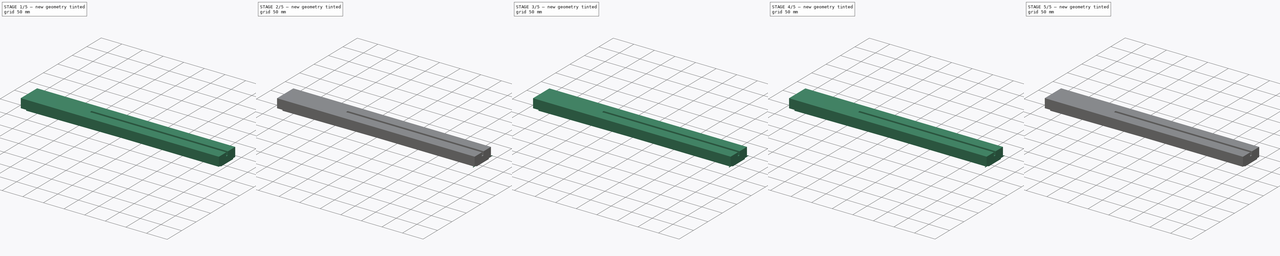
[diagram: build sequence overview — one tinted view per stage of 5, left to right]
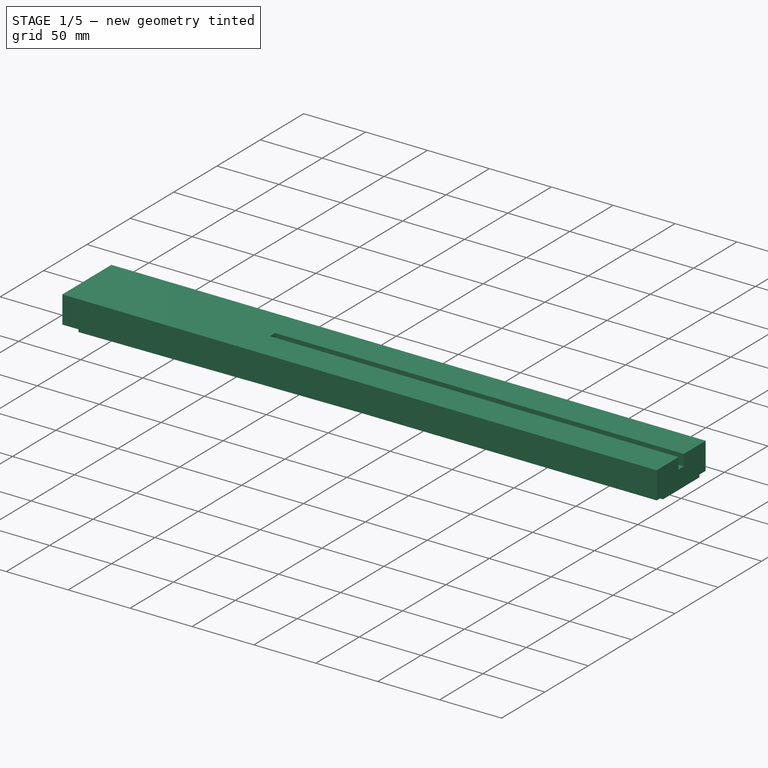
[diagram: stage 1 of 5 — iso view after this stage's code; geometry added in this stage tinted green]
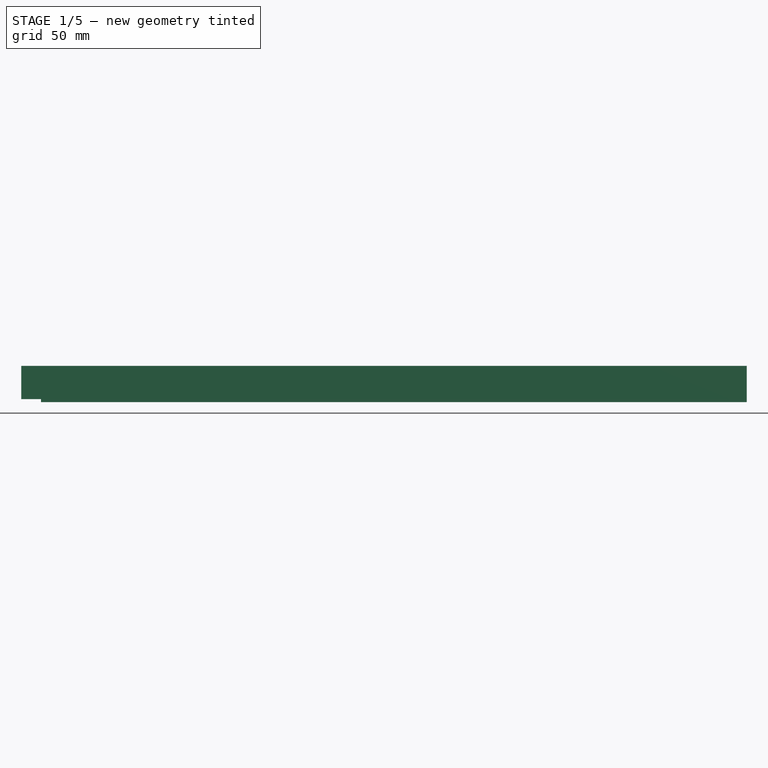
[diagram: stage 1 of 5 — front view after this stage's code; geometry added in this stage tinted green]
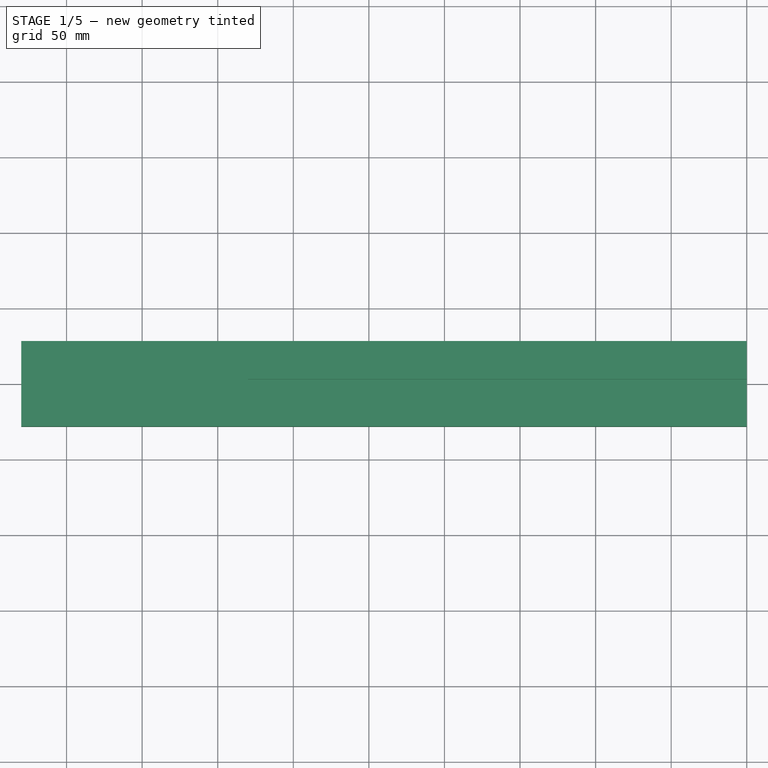
[diagram: stage 1 of 5 — top view after this stage's code; geometry added in this stage tinted green]
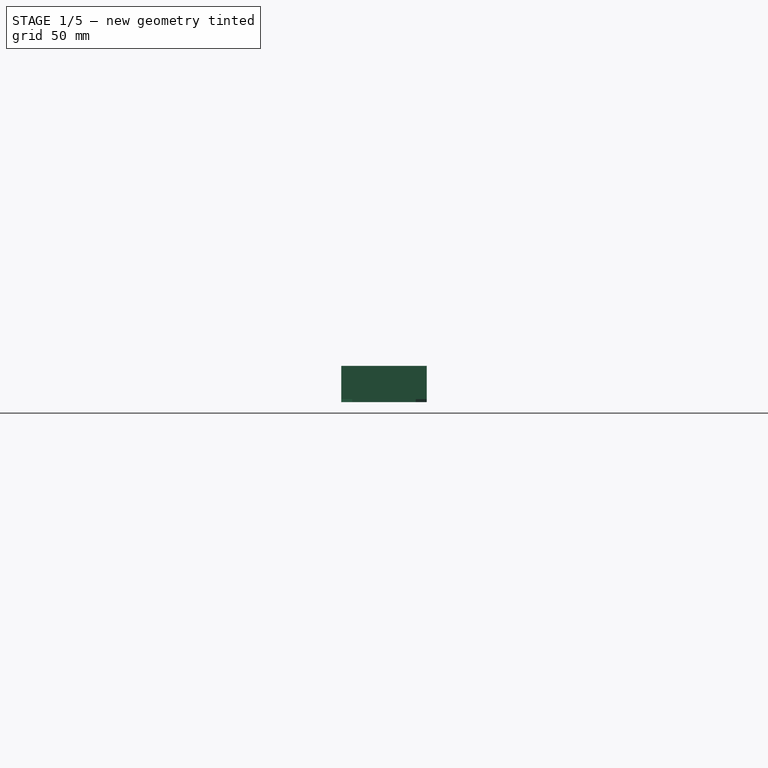
[diagram: stage 1 of 5 — right view after this stage's code; geometry added in this stage tinted green]
FCSTD DOCUMENT  (FreeCAD 0.21R33771 (Git))
Label: nocaster
License: All rights reserved
LicenseURL: http://en.wikipedia.org/wiki/All_rights_reserved
objects: Part::Feature×27, PartDesign::Body×23, PartDesign::FeatureBase×22, Part::RuledSurface×19, Sketcher::SketchObject×12, Part::Compound×6, Part::Extrusion×2, Part::Part2DObjectPython×2, PartDesign::Pocket×2, Part::Cut×1, PartDesign::Pad×1, Part::MultiFuse×1
note: 121 computed .brp shape members not serialized (recipe doc carries the construction recipe); baked Part::Feature solids carry a one-line shape summary decoded from their .brp

FEATURE [Sketcher::SketchObject] Sketch008
  FullyConstrained = true
  MapMode = 5
  Support = -> [XY_Plane021]
  sketch-geometry (4):
    g0: LineSegment StartX=1.55e-14 StartY=20.9775 StartZ=0 EndX=1.55e-14 EndY=-20.9775 EndZ=0
    g1: LineSegment StartX=-466.9 StartY=28.265 StartZ=0 EndX=-466.9 EndY=-28.265 EndZ=0
    g2: LineSegment StartX=-466.9 StartY=28.265 StartZ=0 EndX=1.55e-14 EndY=20.9775 EndZ=0
    g3: LineSegment StartX=-466.9 StartY=-28.265 StartZ=0 EndX=1.55e-14 EndY=-20.9775 EndZ=0
  constraints (10):
    c: Vertical(g0)
    c: DistanceY(g0,g0) = 41.955
    c: Symmetric(g0,g0,g-1)
    c: DistanceY(g1,g1) = 56.53
    c: Symmetric(g1,g1,g-1)
    c: Distance(g-1,g1) = 466.9
    c: Coincident(g2,g1)
    c: Coincident(g2,g0)
    c: Coincident(g3,g1)
    c: Coincident(g3,g0)
FEATURE [PartDesign::Pad] Pad
  Direction = (0,0,1)
  Length = 2
  Length2 = 10
  Profile = -> Sketch008
  ReferenceAxis = -> Sketch008 [N_Axis]
  Type = 0
FEATURE [Sketcher::SketchObject] Sketch009
  ExternalGeometry = -> [Pad]
  FullyConstrained = true
  MapMode = 5
  Placement = pos=(0,0,2) rot=(0,0,1;0rad)
  Support = -> [Pad]
  sketch-geometry (4):
    g0: LineSegment StartX=-2 StartY=19.0085 StartZ=0 EndX=-2 EndY=-19.0085 EndZ=0
    g1: LineSegment StartX=-464.9 StartY=26.2335 StartZ=0 EndX=-464.9 EndY=-26.2335 EndZ=0
    g2: LineSegment StartX=-464.9 StartY=26.2335 StartZ=0 EndX=-2 EndY=19.0085 EndZ=0
    g3: LineSegment StartX=-464.9 StartY=-26.2335 StartZ=0 EndX=-2 EndY=-19.0085 EndZ=0
  constraints (12):
    c: Vertical(g0)
    c: Distance(g-1,g0) = 2
    c: Distance(g0,g-3) = 2
    c: Distance(g0,g-4) = 2
    c: Vertical(g1)
    c: Coincident(g2,g1)
    c: Coincident(g2,g0)
    c: Coincident(g3,g1)
    c: Coincident(g3,g0)
    c: Distance(g1,g-3) = 2
    c: Distance(g1,g-4) = 2
    c: Distance(g-1,g1) = 464.9
FEATURE [PartDesign::Pocket] Pocket
  BaseFeature = -> Pad
  Direction = (0,0,-1)
  Length = 5
  Length2 = 5
  Profile = -> Sketch009
  ReferenceAxis = -> Sketch009 [N_Axis]
  Type = 1
FEATURE [PartDesign::Body] Body021
  Group = -> [Sketch008,Pad,Sketch009,Pocket]
  Origin = -> Origin021
  Placement = pos=(0,0,-4) rot=(0,0,1;0rad)
  Tip = -> Pocket
FEATURE [Part::Compound] Compound005
  Links = -> [Body021]
  Placement = pos=(0,0,2) rot=(0,0,1;0rad)
FEATURE [Part::Feature] Fusion_solid  label="fretboard_solid"
  shape: bbox 466.9 x 66.5 x 5.033 mm, 285 faces (baked)
FEATURE [Sketcher::SketchObject] Sketch010
  FullyConstrained = true
  sketch-geometry (4):
    g0: LineSegment StartX=-480 StartY=28.265 StartZ=0 EndX=-480 EndY=-28.265 EndZ=0
    g1: LineSegment StartX=0 StartY=28.265 StartZ=0 EndX=0 EndY=-28.265 EndZ=0
    g2: LineSegment StartX=-480 StartY=28.265 StartZ=0 EndX=0 EndY=28.265 EndZ=0
    g3: LineSegment StartX=-480 StartY=-28.265 StartZ=0 EndX=0 EndY=-28.265 EndZ=0
  constraints (10):
    c: DistanceY(g0,g0) = 56.53
    c: Symmetric(g0,g0,g-1)
    c: Distance(g0,g-2) = 480
    c: PointOnObject(g1,g-2)
    c: Symmetric(g1,g1,g-1)
    c: Coincident(g2,g0)
    c: Coincident(g2,g1)
    c: Horizontal(g2)
    c: Coincident(g3,g0)
    c: Coincident(g3,g1)
FEATURE [Part::Extrusion] Extrude001
  Base = -> Sketch010
  Dir = (0,0,1)
  DirMode = 2
  FaceMakerClass = Part::FaceMakerBullseye
  LengthFwd = 22
  LengthRev = 0
  Solid = true
  Symmetric = false
FEATURE [Sketcher::SketchObject] Sketch011
  FullyConstrained = true
  MapMode = 5
  Placement = pos=(0,0,22) rot=(0,0,1;0rad)
  Support = -> [Extrude001]
  sketch-geometry (4):
    g0: LineSegment StartX=0 StartY=3 StartZ=0 EndX=0 EndY=-3 EndZ=0
    g1: LineSegment StartX=-330 StartY=3 StartZ=0 EndX=-330 EndY=-3 EndZ=0
    g2: LineSegment StartX=-330 StartY=3 StartZ=0 EndX=0 EndY=3 EndZ=0
    g3: LineSegment StartX=-330 StartY=-3 StartZ=0 EndX=0 EndY=-3 EndZ=0
  constraints (10):
    c: DistanceY(g0,g0) = 6
    c: PointOnObject(g0,g-2)
    c: Symmetric(g0,g0,g-1)
    c: DistanceY(g1,g1) = 6
    c: Distance(g1,g-2) = 330
    c: Symmetric(g1,g1,g-1)
    c: Coincident(g2,g1)
    c: Coincident(g2,g0)
    c: Coincident(g3,g1)
    c: Coincident(g3,g0)
FEATURE [PartDesign::FeatureBase] BaseFeature
  BaseFeature = -> Extrude001
FEATURE [PartDesign::Pocket] Pocket001
  BaseFeature = -> BaseFeature
  Direction = (0,0,-1)
  Length = 9
  Length2 = 5
  Profile = -> Sketch011
  ReferenceAxis = -> Sketch011 [N_Axis]
  Type = 0
FEATURE [PartDesign::Body] Body022  label="trusrod_pocket"
  BaseFeature = -> Extrude001
  Group = -> [BaseFeature,Sketch011,Pocket001]
  Origin = -> Origin022
  Tip = -> Pocket001
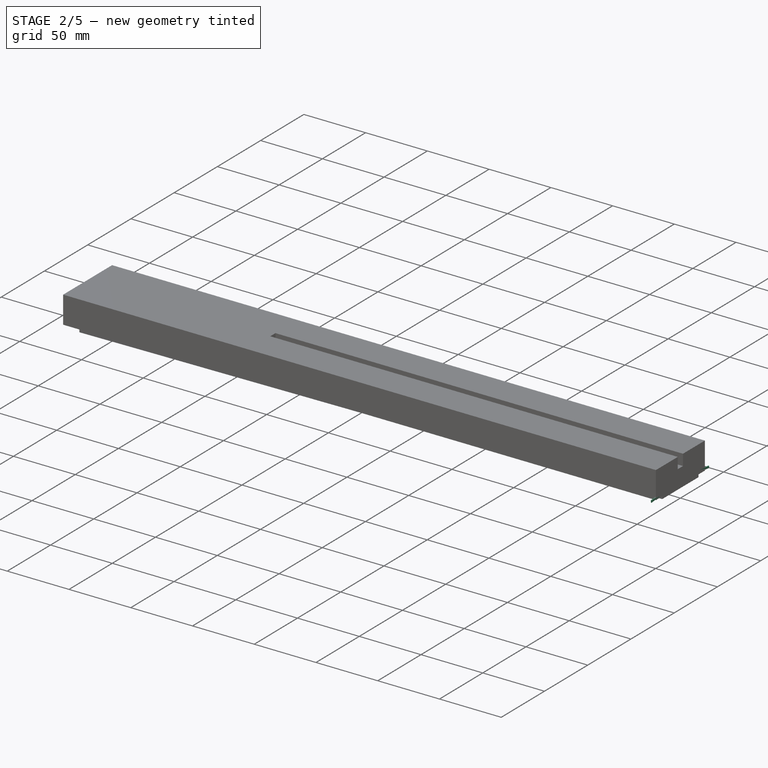
[diagram: stage 2 of 5 — iso view after this stage's code; geometry added in this stage tinted green]
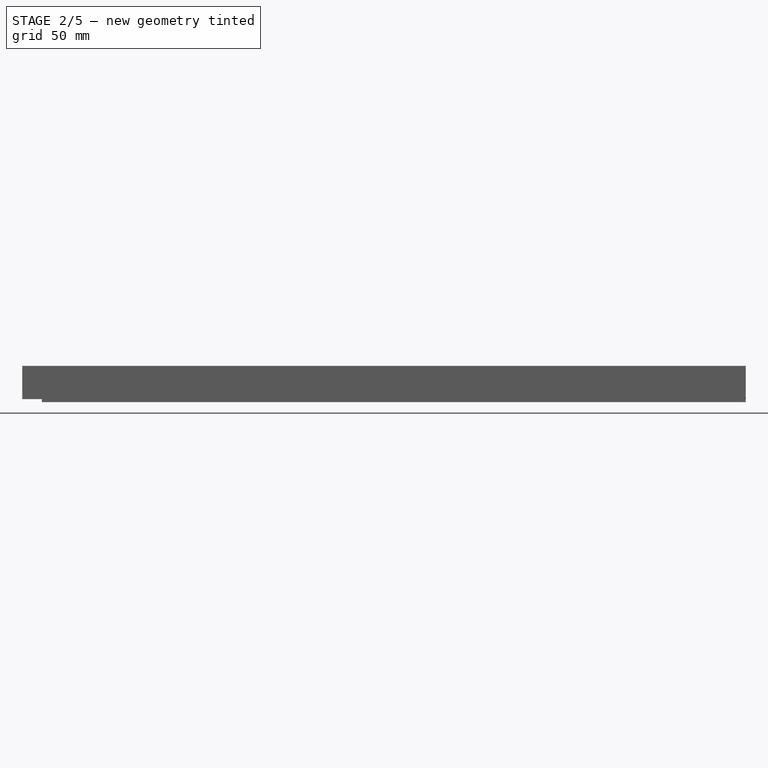
[diagram: stage 2 of 5 — front view after this stage's code; geometry added in this stage tinted green]
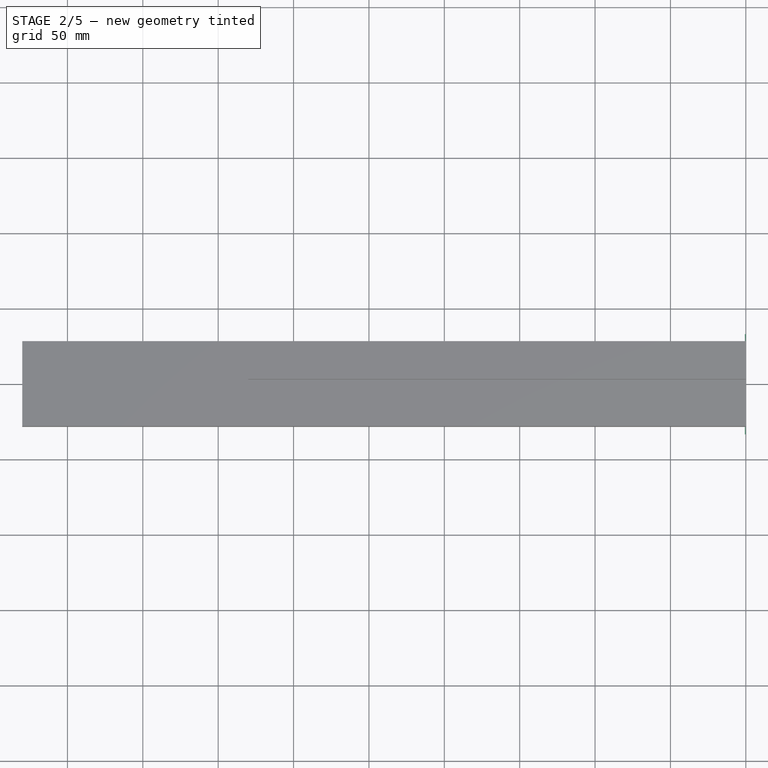
[diagram: stage 2 of 5 — top view after this stage's code; geometry added in this stage tinted green]
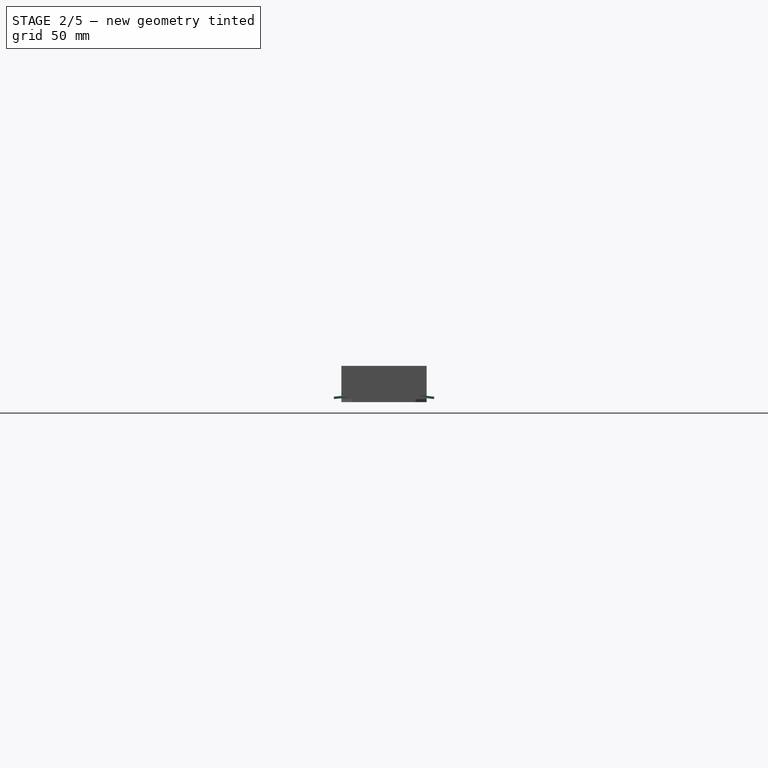
[diagram: stage 2 of 5 — right view after this stage's code; geometry added in this stage tinted green]
FEATURE [PartDesign::Body] Body013
  Group = -> [Clone013]
  Origin = -> Origin013
  Placement = pos=(-358.856,0,-2.306) rot=(0,0,1;0rad)
  Tip = -> Clone013
FEATURE [PartDesign::FeatureBase] Clone014
  BaseFeature = -> Compound002_solid
FEATURE [PartDesign::Body] Body014
  Group = -> [Clone014]
  Origin = -> Origin014
  Placement = pos=(-375.062,0,-2.33) rot=(0,0,1;0rad)
  Tip = -> Clone014
FEATURE [PartDesign::FeatureBase] Clone015
  BaseFeature = -> Compound002_solid
FEATURE [PartDesign::Body] Body015
  Group = -> [Clone015]
  Origin = -> Origin015
  Placement = pos=(-390.327,0,-2.261) rot=(0,0,1;0rad)
  Tip = -> Clone015
FEATURE [PartDesign::FeatureBase] Clone016
  BaseFeature = -> Compound002_solid
FEATURE [PartDesign::Body] Body016
  Group = -> [Clone016]
  Origin = -> Origin016
  Placement = pos=(-404.754,0,-2.247) rot=(0,0,1;0rad)
  Tip = -> Clone016
FEATURE [PartDesign::FeatureBase] Clone017
  BaseFeature = -> Compound002_solid
FEATURE [PartDesign::Body] Body017
  Group = -> [Clone017]
  Origin = -> Origin017
  Placement = pos=(-418.369,0,-2.212) rot=(0,0,1;0rad)
  Tip = -> Clone017
FEATURE [PartDesign::FeatureBase] Clone018
  BaseFeature = -> Compound002_solid
FEATURE [PartDesign::Body] Body018
  Group = -> [Clone018]
  Origin = -> Origin018
  Placement = pos=(-431.221,0,-2.168) rot=(0,0,1;0rad)
  Tip = -> Clone018
FEATURE [PartDesign::FeatureBase] Clone019
  BaseFeature = -> Compound002_solid
FEATURE [PartDesign::Body] Body019
  Group = -> [Clone019]
  Origin = -> Origin019
  Placement = pos=(-443.362,0,-2.155) rot=(0,0,1;0rad)
  Tip = -> Clone019
FEATURE [PartDesign::FeatureBase] Clone020
  BaseFeature = -> Compound002_solid
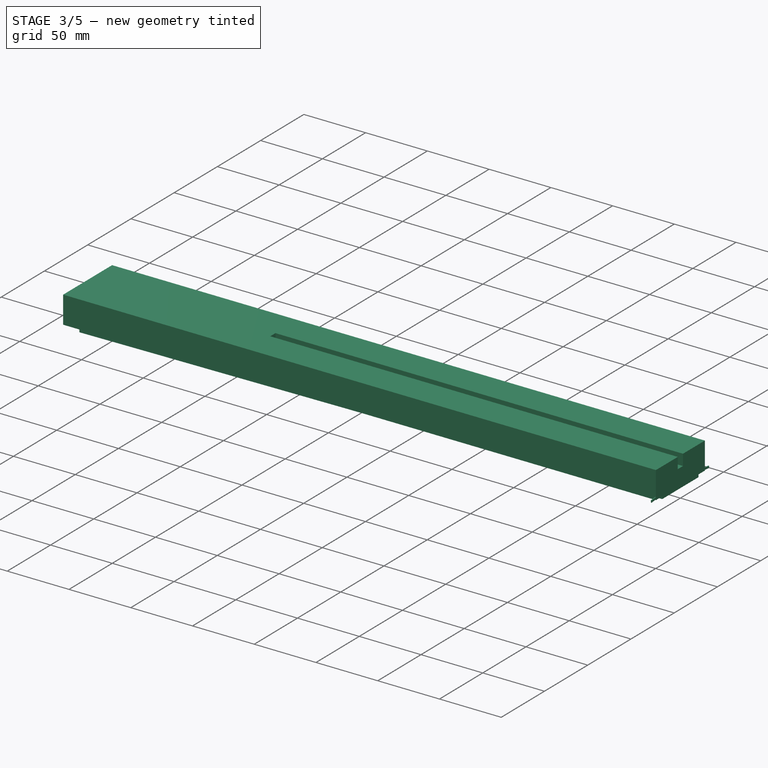
[diagram: stage 3 of 5 — iso view after this stage's code; geometry added in this stage tinted green]
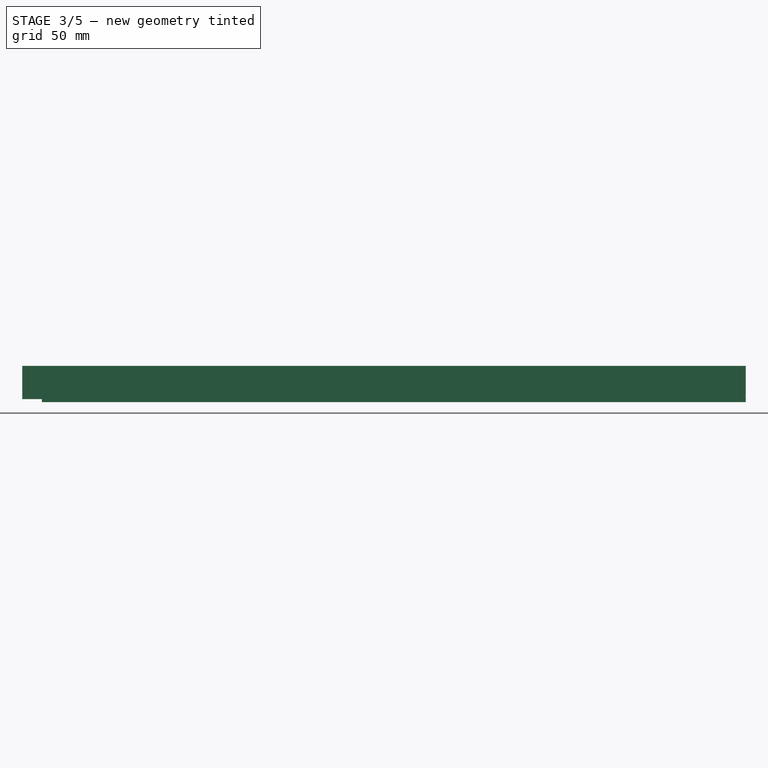
[diagram: stage 3 of 5 — front view after this stage's code; geometry added in this stage tinted green]
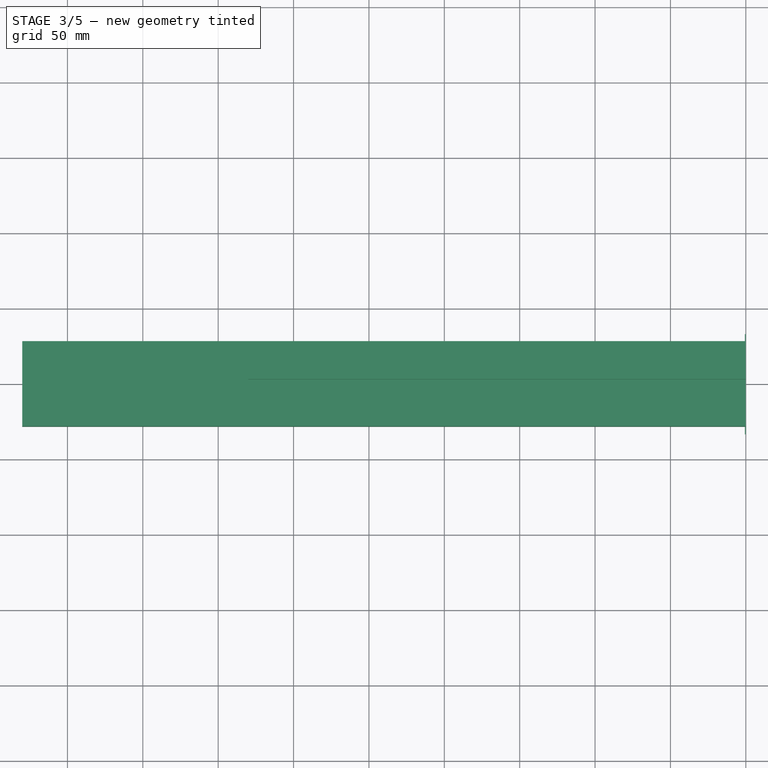
[diagram: stage 3 of 5 — top view after this stage's code; geometry added in this stage tinted green]
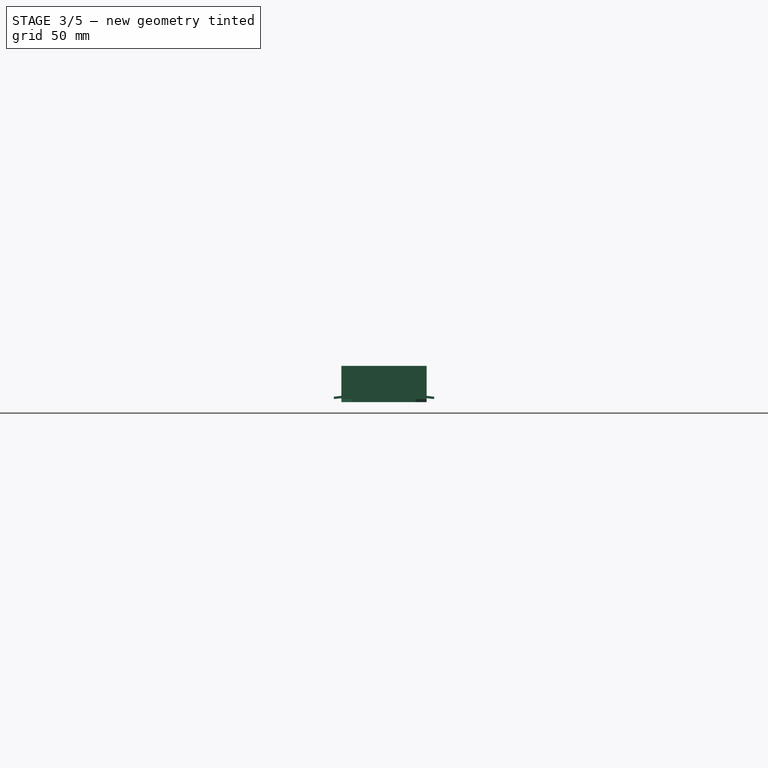
[diagram: stage 3 of 5 — right view after this stage's code; geometry added in this stage tinted green]
FEATURE [PartDesign::Body] Body007
  Group = -> [Clone007]
  Origin = -> Origin007
  Placement = pos=(-239.349,0,-2.519) rot=(0,0,1;0rad)
  Tip = -> Clone007
FEATURE [PartDesign::FeatureBase] Clone008
  BaseFeature = -> Compound002_solid
FEATURE [PartDesign::Body] Body008
  Group = -> [Clone008]
  Origin = -> Origin008
  Placement = pos=(-262.26,0,-2.504) rot=(0,0,1;0rad)
  Tip = -> Clone008
FEATURE [PartDesign::FeatureBase] Clone009
  BaseFeature = -> Compound002_solid
FEATURE [PartDesign::Body] Body009
  Group = -> [Clone009]
  Origin = -> Origin009
  Placement = pos=(-283.876,0,-2.429) rot=(0,0,1;0rad)
  Tip = -> Clone009
FEATURE [PartDesign::FeatureBase] Clone010
  BaseFeature = -> Compound002_solid
FEATURE [PartDesign::Body] Body010
  Group = -> [Clone010]
  Origin = -> Origin010
  Placement = pos=(-304.272,0,-2.412) rot=(0,0,1;0rad)
  Tip = -> Clone010
FEATURE [PartDesign::FeatureBase] Clone011
  BaseFeature = -> Compound002_solid
FEATURE [PartDesign::Body] Body011
  Group = -> [Clone011]
  Origin = -> Origin011
  Placement = pos=(-323.525,0,-2.387) rot=(0,0,1;0rad)
  Tip = -> Clone011
FEATURE [PartDesign::FeatureBase] Clone012
  BaseFeature = -> Compound002_solid
FEATURE [PartDesign::Body] Body012
  Group = -> [Clone012]
  Origin = -> Origin012
  Placement = pos=(-341.711,0,-2.352) rot=(0,0,1;0rad)
  Tip = -> Clone012
FEATURE [PartDesign::FeatureBase] Clone013
  BaseFeature = -> Compound002_solid
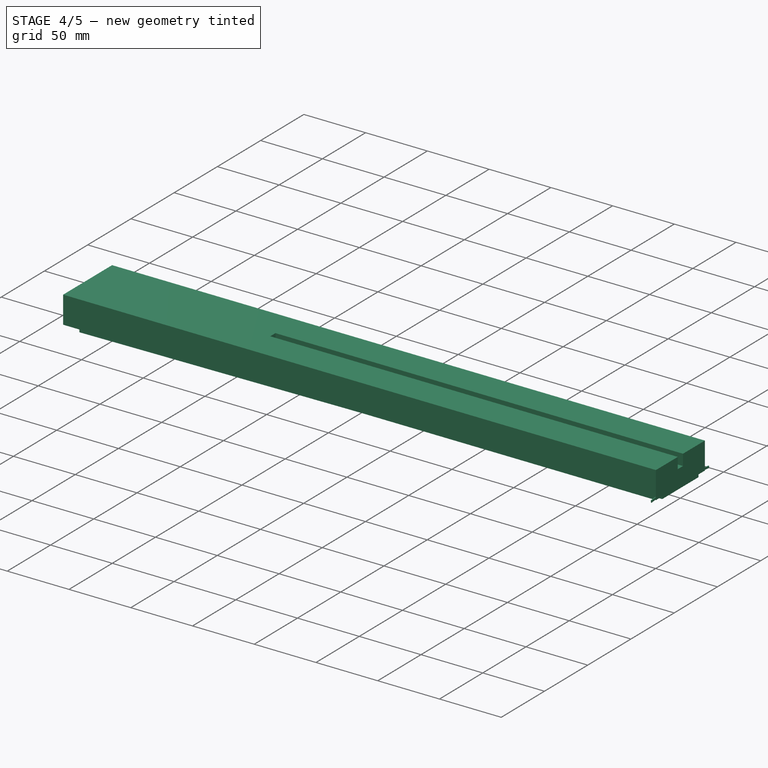
[diagram: stage 4 of 5 — iso view after this stage's code; geometry added in this stage tinted green]
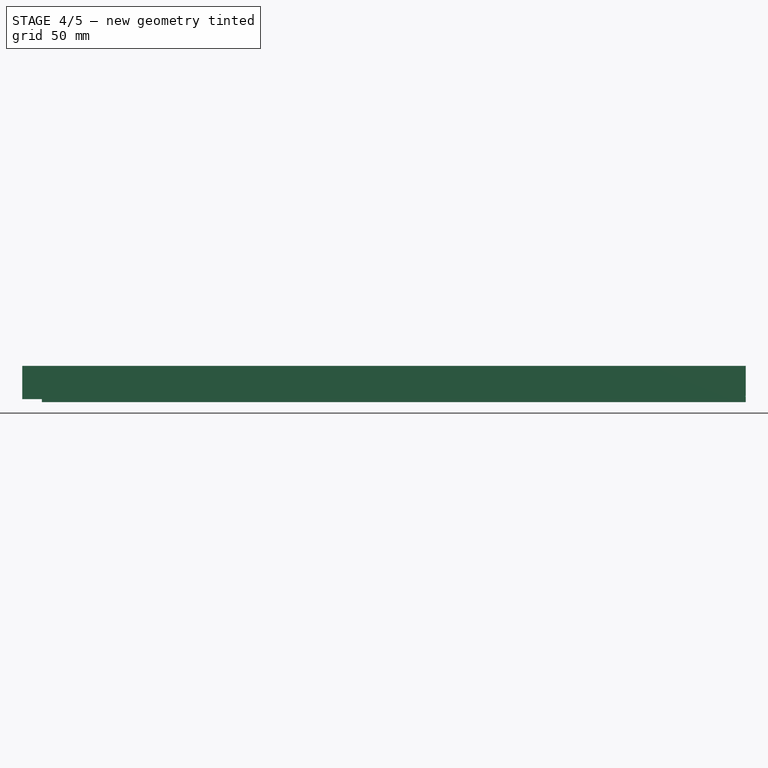
[diagram: stage 4 of 5 — front view after this stage's code; geometry added in this stage tinted green]
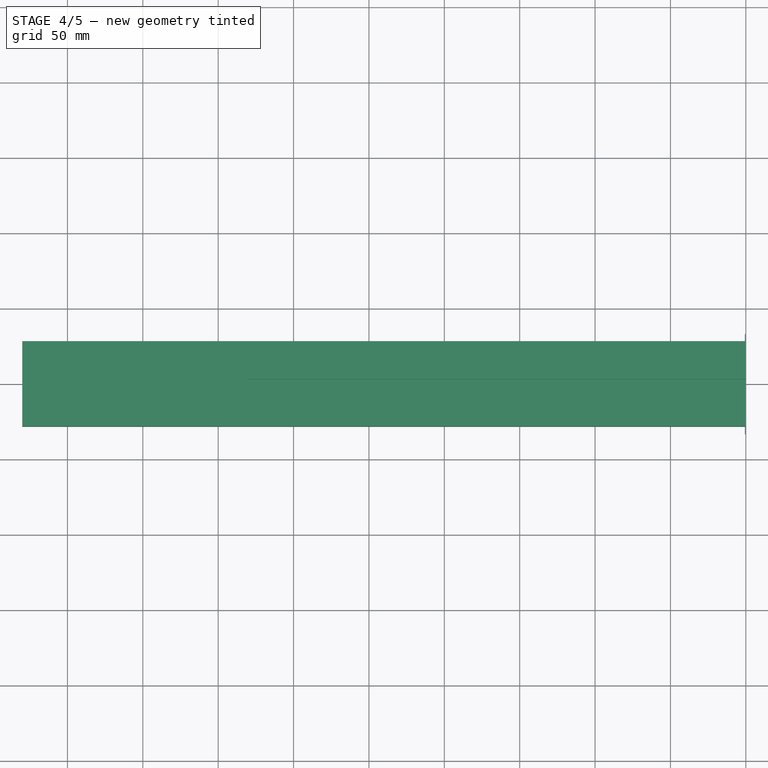
[diagram: stage 4 of 5 — top view after this stage's code; geometry added in this stage tinted green]
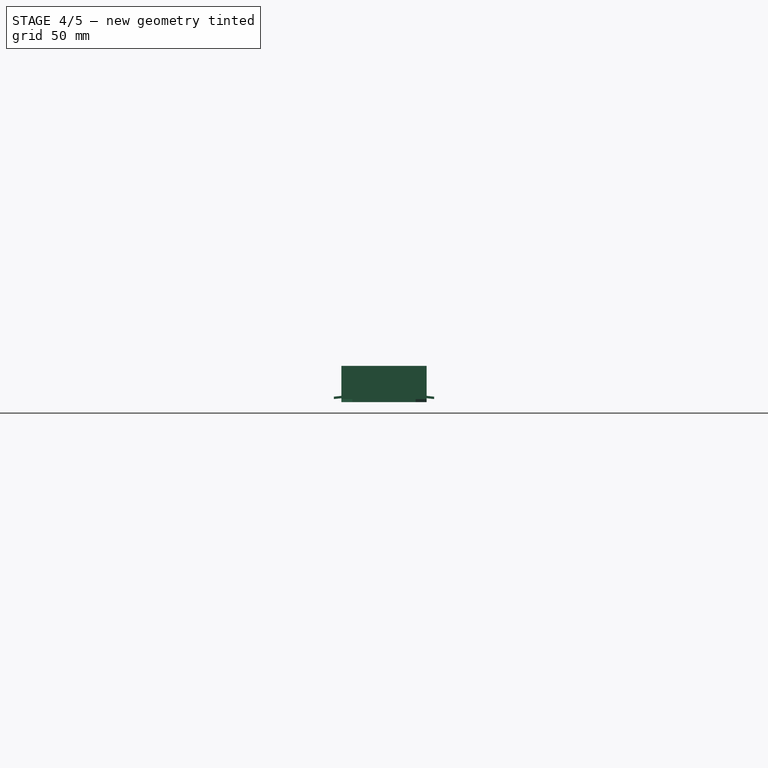
[diagram: stage 4 of 5 — right view after this stage's code; geometry added in this stage tinted green]
FEATURE [PartDesign::Body] Body
  Group = -> [Clone]
  Origin = -> Origin
  Placement = pos=(-36.0224,0,-2.844) rot=(0,0,1;0rad)
  Tip = -> Clone
FEATURE [PartDesign::FeatureBase] Clone001
  BaseFeature = -> Compound002_solid
FEATURE [PartDesign::Body] Body001
  Group = -> [Clone001]
  Origin = -> Origin001
  Placement = pos=(-70.3378,0,-2.795) rot=(0,0,1;0rad)
  Tip = -> Clone001
FEATURE [PartDesign::FeatureBase] Clone002
  BaseFeature = -> Compound002_solid
FEATURE [PartDesign::Body] Body002
  Group = -> [Clone002]
  Origin = -> Origin002
  Placement = pos=(-102.723,0,-2.733) rot=(0,0,1;0rad)
  Tip = -> Clone002
FEATURE [PartDesign::FeatureBase] Clone003
  BaseFeature = -> Compound002_solid
FEATURE [PartDesign::Body] Body003
  Group = -> [Clone003]
  Origin = -> Origin003
  Placement = pos=(-133.304,0,-2.708) rot=(0,0,1;0rad)
  Tip = -> Clone003
FEATURE [PartDesign::FeatureBase] Clone004
  BaseFeature = -> Compound002_solid
FEATURE [PartDesign::Body] Body004
  Group = -> [Clone004]
  Origin = -> Origin004
  Placement = pos=(-162.159,0,-2.649) rot=(0,0,1;0rad)
  Tip = -> Clone004
FEATURE [PartDesign::FeatureBase] Clone005
  BaseFeature = -> Compound002_solid
FEATURE [PartDesign::Body] Body005
  Group = -> [Clone005]
  Origin = -> Origin005
  Placement = pos=(-189.388,0,-2.59) rot=(0,0,1;0rad)
  Tip = -> Clone005
FEATURE [PartDesign::FeatureBase] Clone006
  BaseFeature = -> Compound002_solid
FEATURE [PartDesign::Body] Body006
  Group = -> [Clone006]
  Origin = -> Origin006
  Placement = pos=(-215.092,0,-2.561) rot=(0,0,1;0rad)
  Tip = -> Clone006
FEATURE [PartDesign::FeatureBase] Clone007
  BaseFeature = -> Compound002_solid
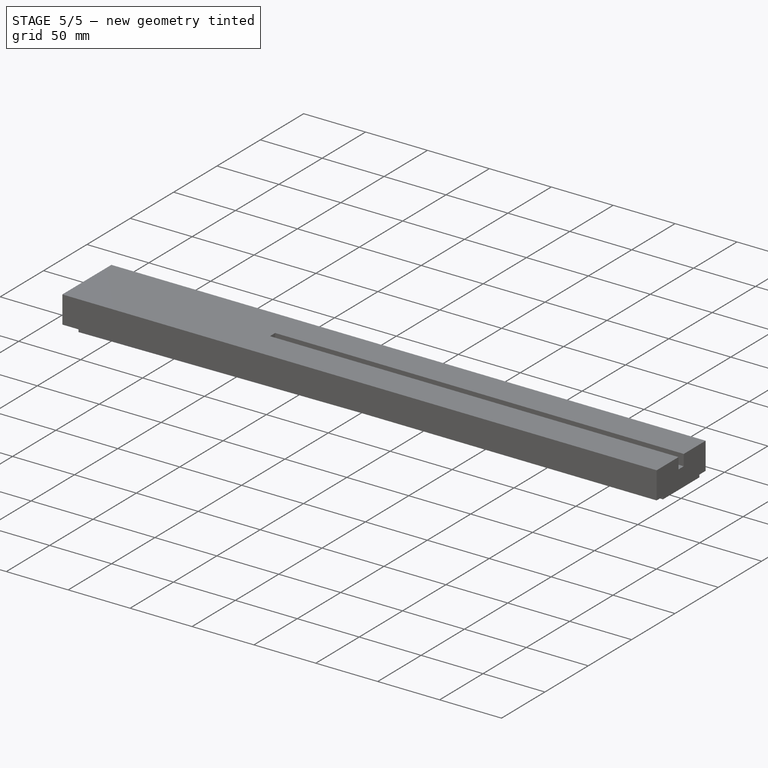
[diagram: stage 5 of 5 — iso view after this stage's code; geometry added in this stage tinted green]
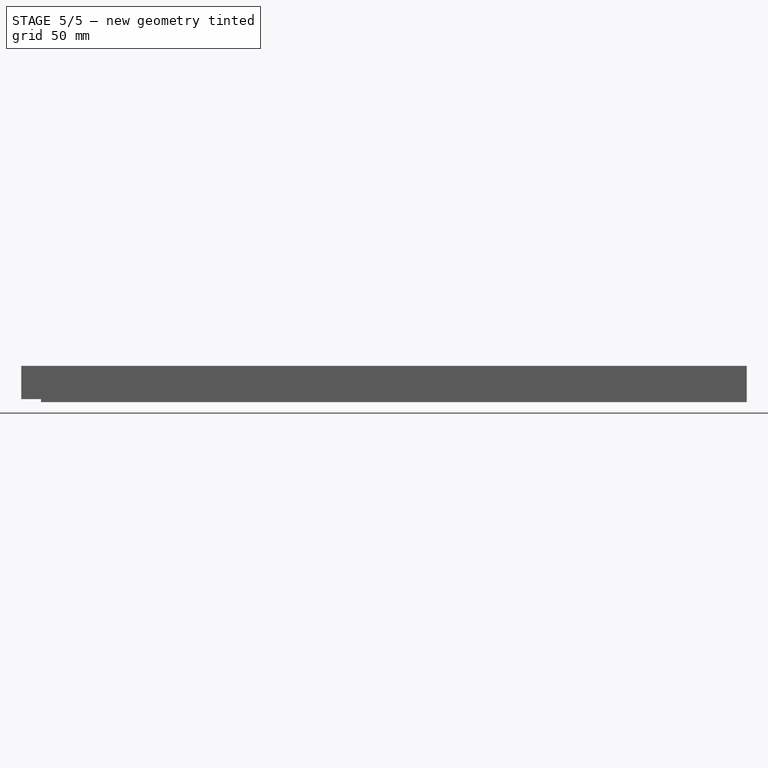
[diagram: stage 5 of 5 — front view after this stage's code; geometry added in this stage tinted green]
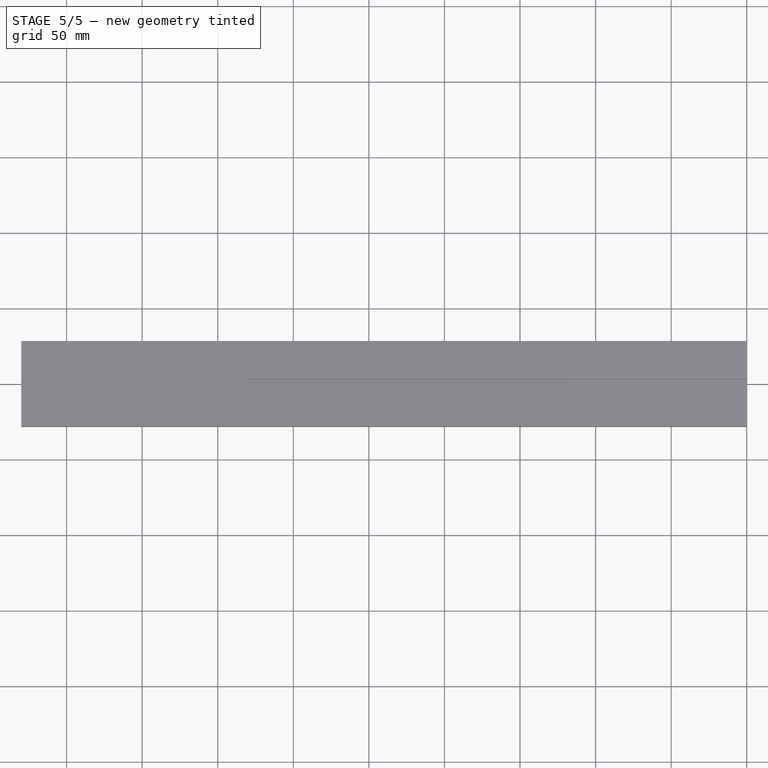
[diagram: stage 5 of 5 — top view after this stage's code; geometry added in this stage tinted green]
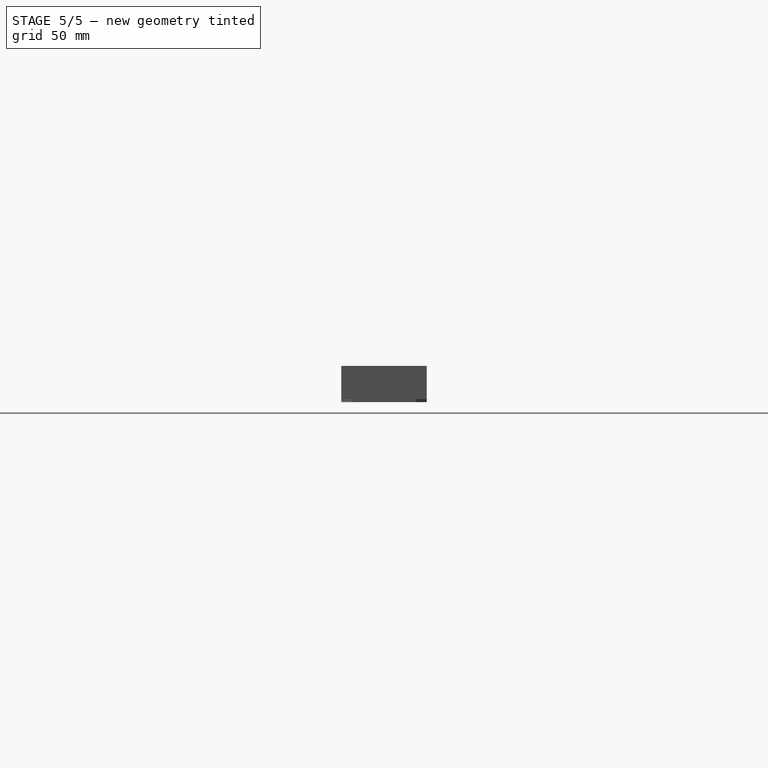
[diagram: stage 5 of 5 — right view after this stage's code; geometry added in this stage tinted green]
FEATURE [Sketcher::SketchObject] Sketch  label="neck_bottom"
  FullyConstrained = true
  sketch-geometry (26):
    g0: LineSegment StartX=1.55e-14 StartY=20.9775 StartZ=0 EndX=1.55e-14 EndY=-20.9775 EndZ=0
    g1: LineSegment StartX=-466.9 StartY=28.265 StartZ=0 EndX=-466.9 EndY=-28.265 EndZ=0
    g2: LineSegment StartX=-466.9 StartY=28.265 StartZ=0 EndX=1.55e-14 EndY=20.9775 EndZ=0
    g3: LineSegment StartX=-466.9 StartY=-28.265 StartZ=0 EndX=1.55e-14 EndY=-20.9775 EndZ=0
    g4: LineSegment StartX=-36.3474 StartY=21.5448 StartZ=0 EndX=-36.3474 EndY=-21.5448 EndZ=0
    g5: LineSegment StartX=-70.6628 StartY=22.0804 StartZ=0 EndX=-70.6628 EndY=-22.0804 EndZ=0
    g6: LineSegment StartX=-103.048 StartY=22.5859 StartZ=0 EndX=-103.048 EndY=-22.5859 EndZ=0
    g7: LineSegment StartX=-133.629 StartY=23.0632 StartZ=0 EndX=-133.629 EndY=-23.0632 EndZ=0
    g8: LineSegment StartX=-162.484 StartY=23.5136 StartZ=0 EndX=-162.484 EndY=-23.5136 EndZ=0
    g9: LineSegment StartX=-189.713 StartY=23.9386 StartZ=0 EndX=-189.713 EndY=-23.9386 EndZ=0
    g10: LineSegment StartX=-215.417 StartY=24.3398 StartZ=0 EndX=-215.417 EndY=-24.3398 EndZ=0
    g11: LineSegment StartX=-239.674 StartY=24.7184 StartZ=0 EndX=-239.674 EndY=-24.7184 EndZ=0
    g12: LineSegment StartX=-262.585 StartY=25.076 StartZ=0 EndX=-262.585 EndY=-25.076 EndZ=0
    g13: LineSegment StartX=-284.201 StartY=25.4134 StartZ=0 EndX=-284.201 EndY=-25.4134 EndZ=0
    g14: LineSegment StartX=-304.597 StartY=25.7317 StartZ=0 EndX=-304.597 EndY=-25.7317 EndZ=0
    g15: LineSegment StartX=-323.85 StartY=26.0322 StartZ=0 EndX=-323.85 EndY=-26.0322 EndZ=0
    g16: LineSegment StartX=-342.036 StartY=26.3161 StartZ=0 EndX=-342.036 EndY=-26.3161 EndZ=0
    g17: LineSegment StartX=-359.181 StartY=26.5837 StartZ=0 EndX=-359.181 EndY=-26.5837 EndZ=0
    g18: LineSegment StartX=-375.387 StartY=26.8366 StartZ=0 EndX=-375.387 EndY=-26.8366 EndZ=0
    g19: LineSegment StartX=-390.652 StartY=27.0749 StartZ=0 EndX=-390.652 EndY=-27.0749 EndZ=0
    g20: LineSegment StartX=-405.079 StartY=27.3001 StartZ=0 EndX=-405.079 EndY=-27.3001 EndZ=0
    g21: LineSegment StartX=-418.694 StartY=27.5126 StartZ=0 EndX=-418.694 EndY=-27.5126 EndZ=0
    g22: LineSegment StartX=-431.546 StartY=27.7132 StartZ=0 EndX=-431.546 EndY=-27.7132 EndZ=0
    g23: LineSegment StartX=-443.687 StartY=27.9027 StartZ=0 EndX=-443.687 EndY=-27.9027 EndZ=0
    g24: LineSegment StartX=-455.143 StartY=28.0815 StartZ=0 EndX=-455.143 EndY=-28.0815 EndZ=0
    g25: GeomPoint X=-323.85 Y=0 Z=0
  constraints (96):
    c: Vertical(g0)
    c: DistanceY(g0,g0) = 41.955
    c: Symmetric(g0,g0,g-1)
    c: DistanceY(g1,g1) = 56.53
    c: Symmetric(g1,g1,g-1)
    c: Distance(g-1,g1) = 466.9
    c: Coincident(g2,g1)
    c: Coincident(g2,g0)
    c: Coincident(g3,g1)
    c: Coincident(g3,g0)
    c: Vertical(g7)
    c: Vertical(g8)
    c: Vertical(g12)
    c: Vertical(g13)
    c: Vertical(g14)
    c: Vertical(g15)
    c: Vertical(g16)
    c: Vertical(g22)
    c: Vertical(g24)
    c: Vertical(g23)
    c: Vertical(g21)
    c: Vertical(g6)
    c: Vertical(g5)
    c: Vertical(g4)
    c: Vertical(g9)
    c: Vertical(g10)
    c: Vertical(g11)
    c: Vertical(g17)
    c: Vertical(g18)
    c: Vertical(g19)
    c: Vertical(g20)
    c: PointOnObject(g4,g2)
    c: PointOnObject(g4,g3)
    c: PointOnObject(g5,g2)
    c: PointOnObject(g5,g3)
    c: PointOnObject(g6,g2)
    c: PointOnObject(g6,g3)
    c: PointOnObject(g7,g2)
    c: PointOnObject(g7,g3)
    c: PointOnObject(g8,g2)
    c: PointOnObject(g8,g3)
    c: PointOnObject(g9,g2)
    c: PointOnObject(g9,g3)
    c: PointOnObject(g10,g2)
    c: PointOnObject(g10,g3)
    c: PointOnObject(g11,g2)
    c: PointOnObject(g11,g3)
    c: PointOnObject(g12,g2)
    c: PointOnObject(g12,g3)
    c: PointOnObject(g13,g2)
    c: PointOnObject(g13,g3)
    c: PointOnObject(g14,g2)
    c: PointOnObject(g14,g3)
    c: PointOnObject(g15,g2)
    c: PointOnObject(g15,g3)
    c: PointOnObject(g16,g2)
    c: PointOnObject(g16,g3)
    c: PointOnObject(g17,g2)
    c: PointOnObject(g17,g3)
    c: PointOnObject(g18,g2)
    c: PointOnObject(g18,g3)
    c: PointOnObject(g19,g2)
    c: PointOnObject(g19,g3)
    c: PointOnObject(g20,g2)
    c: PointOnObject(g20,g3)
    c: PointOnObject(g21,g2)
    c: PointOnObject(g21,g3)
    c: PointOnObject(g22,g2)
    c: PointOnObject(g22,g3)
    c: PointOnObject(g23,g2)
    c: PointOnObject(g23,g3)
    c: PointOnObject(g24,g2)
    c: PointOnObject(g24,g3)
    c: Distance(g-1,g4) = 36.3474
    c: Distance(g-1,g5) = 70.6628
    c: Distance(g-1,g6) = 103.048
    c: Distance(g-1,g7) = 133.629
    c: Distance(g-1,g8) = 162.484
    c: Distance(g-1,g9) = 189.713
    c: Distance(g-1,g10) = 215.417
    c: Distance(g-1,g11) = 239.674
    c: Distance(g-1,g12) = 262.585
    c: Distance(g-1,g13) = 284.201
    c: Distance(g-1,g14) = 304.597
    c: Distance(g-1,g15) = 323.85
    c: Distance(g-1,g16) = 342.036
    c: Distance(g-1,g17) = 359.181
    c: Distance(g-1,g18) = 375.387
    c: Distance(g-1,g19) = 390.652
    c: Distance(g-1,g20) = 405.079
    c: Distance(g-1,g21) = 418.694
    c: Distance(g-1,g22) = 431.546
    c: Distance(g-1,g23) = 443.687
    c: Distance(g-1,g24) = 455.143
    c: PointOnObject(g25,g-1)
    c: Distance(g-1,g25) = 323.85
FEATURE [Sketcher::SketchObject] Sketch001  label="radius_head"
  FullyConstrained = true
  Placement = pos=(0,0,0) rot=(0.57735,0.57735,0.57735;2.0944rad)
  sketch-geometry (2):
    g0: LineSegment StartX=-20.9775 StartY=0 StartZ=0 EndX=20.9775 EndY=0 EndZ=0
    g1: ArcOfCircle CenterX=3.89e-14 CenterY=-240.386 CenterZ=0 NormalX=0 NormalY=0 NormalZ=1 AngleXU=0 Radius=241.3 StartAngle=1.48375 EndAngle=1.65784
  constraints (6):
    c: Horizontal(g0)
    c: DistanceX(g0,g0) = 41.955
    c: Symmetric(g0,g0,g-1)
    c: Radius(g1) = 241.3
    c: Coincident(g1,g0)
    c: Coincident(g1,g0)
FEATURE [Sketcher::SketchObject] Sketch002  label="radius_tail"
  FullyConstrained = true
  Placement = pos=(-466.9,0,0) rot=(0.57735,0.57735,0.57735;2.0944rad)
  sketch-geometry (2):
    g0: LineSegment StartX=28.265 StartY=-3.4106e-12 StartZ=0 EndX=-28.265 EndY=-3.4106e-12 EndZ=0
    g1: ArcOfCircle CenterX=0 CenterY=-239.639 CenterZ=0 NormalX=0 NormalY=0 NormalZ=1 AngleXU=0 Radius=241.3 StartAngle=1.45339 EndAngle=1.6882
  constraints (6):
    c: Horizontal(g0)
    c: DistanceX(g0,g0) = 56.53
    c: Symmetric(g0,g0,g-1)
    c: Radius(g1) = 241.3
    c: Coincident(g1,g0)
    c: Coincident(g1,g0)
FEATURE [Part::RuledSurface] Ruled_Surface  label="fingerboard_left"
  Curve1 = -> Sketch [Edge4]
  Curve2 = -> Sketch002 [Edge2]
  Orientation = 0
FEATURE [Part::RuledSurface] Ruled_Surface001  label="fingerboard_right"
  Curve1 = -> Sketch [Edge2]
  Curve2 = -> Sketch001 [Edge2]
  Orientation = 0
FEATURE [Part::RuledSurface] Ruled_Surface002  label="fingerboard_top"
  Curve1 = -> Sketch002 [Edge2]
  Curve2 = -> Sketch001 [Edge2]
  Orientation = 0
FEATURE [Part::RuledSurface] Ruled_Surface003  label="fingerboard_bottom"
  Curve1 = -> Sketch [Edge2]
  Curve2 = -> Sketch002 [Edge1]
  Orientation = 0
FEATURE [Part::Compound] Compound  label="fingerboard"
  Links = -> [Ruled_Surface,Ruled_Surface001,Ruled_Surface002,Ruled_Surface003]
FEATURE [Part::Feature] Compound_solid  label="fingerboard_solid"
  shape: bbox 466.9 x 56.53 x 1.994 mm, 4 faces (baked)
FEATURE [Part::Feature] Wire
  Placement = pos=(-28.7019,5.50807,0) rot=(0,0,1;0rad)
  shape: bbox 42.1 x 2e-07 x 2e-07 mm, 0 faces, 0 solids (baked)
FEATURE [Part::Feature] Wire001
  Placement = pos=(-28.7019,5.50807,0) rot=(0,0,1;0rad)
  shape: bbox 43.05 x 3.112 x 2e-07 mm, 0 faces, 0 solids (baked)
FEATURE [Part::Feature] Wire002
  Placement = pos=(-28.7019,5.50807,0) rot=(0,0,1;0rad)
  shape: bbox 2.032 x 2.667 x 2e-07 mm, 0 faces, 0 solids (baked)
FEATURE [Part::Feature] Wire003
  Placement = pos=(-28.7019,5.50807,0) rot=(0,0,1;0rad)
  shape: bbox 38.73 x 0.635 x 2e-07 mm, 0 faces, 0 solids (baked)
FEATURE [Part::Feature] Wire004
  Placement = pos=(-28.7019,5.50807,0) rot=(0,0,1;0rad)
  shape: bbox 2.032 x 2.667 x 2e-07 mm, 0 faces, 0 solids (baked)
FEATURE [Part::Feature] Wire005
  Placement = pos=(-28.7019,5.50807,0) rot=(0,0,1;0rad)
  shape: bbox 19.05 x 14.86 x 2e-07 mm, 0 faces, 0 solids (baked)
FEATURE [Part::Feature] Wire006
  Placement = pos=(-28.7019,5.50807,0) rot=(0,0,1;0rad)
  shape: bbox 2.476 x 0.4445 x 2e-07 mm, 0 faces, 0 solids (baked)
FEATURE [Part::Feature] Wire007
  Placement = pos=(-28.7019,5.50807,0) rot=(0,0,1;0rad)
  shape: bbox 18.99 x 14.86 x 2e-07 mm, 0 faces, 0 solids (baked)
FEATURE [Part::Feature] Wire008
  Placement = pos=(-28.7019,5.50807,0) rot=(0,0,1;0rad)
  shape: bbox 2.476 x 0.4445 x 2e-07 mm, 0 faces, 0 solids (baked)
FEATURE [Part::Feature] Wire009
  Placement = pos=(-495.805,8.46048,0) rot=(0,0,1;0rad)
  shape: bbox 1.665 x 2.096 x 2e-07 mm, 0 faces, 0 solids (baked)
FEATURE [Part::Feature] Wire010
  Placement = pos=(-495.805,8.46048,0) rot=(0,0,1;0rad)
  shape: bbox 48.89 x 3.176 x 2e-07 mm, 0 faces, 0 solids (baked)
FEATURE [Part::Feature] Wire011
  Placement = pos=(-495.805,8.46048,0) rot=(0,0,1;0rad)
  shape: bbox 1.665 x 2.096 x 2e-07 mm, 0 faces, 0 solids (baked)
FEATURE [Part::Feature] Wire012
  Placement = pos=(-495.805,8.46048,0) rot=(0,0,1;0rad)
  shape: bbox 45.44 x 1.016 x 2e-07 mm, 0 faces, 0 solids (baked)
FEATURE [Part::Feature] Wire013
  Placement = pos=(-495.805,8.46048,0) rot=(0,0,1;0rad)
  shape: bbox 22.12 x 18.17 x 2e-07 mm, 0 faces, 0 solids (baked)
FEATURE [Part::Feature] Wire014
  Placement = pos=(-495.805,8.46048,0) rot=(0,0,1;0rad)
  shape: bbox 22.12 x 18.17 x 2e-07 mm, 0 faces, 0 solids (baked)
FEATURE [Part::Feature] Wire015
  Placement = pos=(-495.805,8.46048,0) rot=(0,0,1;0rad)
  shape: bbox 4.639 x 0.4446 x 2e-07 mm, 0 faces, 0 solids (baked)
FEATURE [Part::Feature] Wire016
  Placement = pos=(-323.85,-173.422,8.46421) rot=(0.57735,0.57735,0.57735;2.0944rad)
  shape: bbox 2e-07 x 1.765 x 2.096 mm, 0 faces, 0 solids (baked)
FEATURE [Part::Feature] Wire017
  Placement = pos=(-323.85,-173.422,8.46421) rot=(0.57735,0.57735,0.57735;2.0944rad)
  shape: bbox 2e-07 x 51.82 x 3.175 mm, 0 faces, 0 solids (baked)
FEATURE [Part::Feature] Wire018
  Placement = pos=(-323.85,-173.422,8.46421) rot=(0.57735,0.57735,0.57735;2.0944rad)
  shape: bbox 2e-07 x 1.765 x 2.096 mm, 0 faces, 0 solids (baked)
FEATURE [Part::Feature] Wire019
  Placement = pos=(-323.85,-173.422,8.46421) rot=(0.57735,0.57735,0.57735;2.0944rad)
  shape: bbox 2e-07 x 48.16 x 1.016 mm, 0 faces, 0 solids (baked)
FEATURE [Part::Feature] Wire020
  Placement = pos=(-323.85,-173.422,8.46421) rot=(0.57735,0.57735,0.57735;2.0944rad)
  shape: bbox 2e-07 x 23.45 x 18.16 mm, 0 faces, 0 solids (baked)
FEATURE [Part::Feature] Wire021
  Placement = pos=(-323.85,-173.422,8.46421) rot=(0.57735,0.57735,0.57735;2.0944rad)
  shape: bbox 2e-07 x 23.45 x 18.16 mm, 0 faces, 0 solids (baked)
FEATURE [Part::Feature] Wire022
  Placement = pos=(-323.85,-173.422,8.46421) rot=(0.57735,0.57735,0.57735;2.0944rad)
  shape: bbox 2e-07 x 4.917 x 0.4445 mm, 0 faces, 0 solids (baked)
FEATURE [Sketcher::SketchObject] Sketch003
  FullyConstrained = true
  Placement = pos=(-36.3474,0,0) rot=(0.57735,0.57735,0.57735;2.0944rad)
  sketch-geometry (6):
    g0: LineSegment StartX=-20.9775 StartY=-4e-15 StartZ=0 EndX=20.9775 EndY=3.6e-15 EndZ=0
    g1: LineSegment StartX=0 StartY=0 StartZ=0 EndX=-6.2e-15 EndY=-20.85 EndZ=0
    g2: ArcOfCircle CenterX=6.77464 CenterY=10.977 CenterZ=0 NormalX=0 NormalY=0 NormalZ=1 AngleXU=0 Radius=32.54 StartAngle=3.67469 EndAngle=4.50266
    g3: ArcOfCircle CenterX=-0.0217036 CenterY=-3.81374 CenterZ=0 NormalX=0 NormalY=0 NormalZ=1 AngleXU=0 Radius=21.3 StartAngle=2.96157 EndAngle=3.22367
    g4: ArcOfCircle CenterX=-6.77464 CenterY=10.977 CenterZ=0 NormalX=0 NormalY=0 NormalZ=1 AngleXU=0 Radius=32.54 StartAngle=4.92212 EndAngle=5.75009
    g5: ArcOfCircle CenterX=0.0217036 CenterY=-3.81374 CenterZ=0 NormalX=0 NormalY=0 NormalZ=1 AngleXU=0 Radius=21.3 StartAngle=6.20111 EndAngle=6.4632
  constraints (20):
    c: PointOnObject(g0,g-1)
    c: DistanceX(g0,g0) = 41.955
    c: Symmetric(g0,g0,g-2)
    c: Coincident(g1,g-1)
    c: PointOnObject(g1,g-2)
    c: DistanceY(g1,g1) = 20.85
    c: Coincident(g2,g1)
    c: Coincident(g3,g0)
    c: Coincident(g2,g3)
    c: Radius(g3) = 21.3
    c: Radius(g2) = 32.54
    c: Distance(g2,g1) = 21.25
    c: Distance(g2,g-1) = 5.56
    c: Coincident(g4,g2)
    c: Radius(g4) = 32.54
    c: Coincident(g5,g0)
    c: Radius(g5) = 21.3
    c: Coincident(g5,g4)
    c: Distance(g4,g-1) = 5.56
    c: Distance(g4,g-2) = 21.25
FEATURE [Sketcher::SketchObject] Sketch004
  ExternalGeometry = -> [Sketch]
  FullyConstrained = true
  Placement = pos=(-323.85,0,0) rot=(0.57735,0.57735,0.57735;2.0944rad)
  sketch-geometry (6):
    g0: LineSegment StartX=-26.0322 StartY=-8e-15 StartZ=0 EndX=26.0322 EndY=-1.499e-12 EndZ=0
    g1: LineSegment StartX=0 StartY=0 StartZ=0 EndX=-1.741e-13 EndY=-24.25 EndZ=0
    g2: ArcOfCircle CenterX=10.3579 CenterY=17.8238 CenterZ=0 NormalX=0 NormalY=0 NormalZ=1 AngleXU=0 Radius=43.33 StartAngle=3.7393 EndAngle=4.47101
    g3: ArcOfCircle CenterX=-1.5602 CenterY=-1.17023 CenterZ=0 NormalX=0 NormalY=0 NormalZ=1 AngleXU=0 Radius=24.5 StartAngle=3.09381 EndAngle=3.3634
    g4: ArcOfCircle CenterX=-10.3579 CenterY=17.8238 CenterZ=0 NormalX=0 NormalY=0 NormalZ=1 AngleXU=0 Radius=43.33 StartAngle=4.95377 EndAngle=5.68548
    g5: ArcOfCircle CenterX=1.5602 CenterY=-1.17023 CenterZ=0 NormalX=0 NormalY=0 NormalZ=1 AngleXU=0 Radius=24.5 StartAngle=6.06138 EndAngle=6.33097
  constraints (19):
    c: Coincident(g0,g-3)
    c: Coincident(g0,g-4)
    c: PointOnObject(g1,g-2)
    c: DistanceY(g1,g1) = 24.25
    c: Coincident(g1,g-1)
    c: Coincident(g2,g1)
    c: Coincident(g3,g0)
    c: Coincident(g3,g2)
    c: Radius(g2) = 43.33
    c: Radius(g3) = 24.5
    c: Distance(g2,g-1) = 6.56
    c: Distance(g2,g-2) = 25.46
    c: Coincident(g5,g0)
    c: Coincident(g4,g1)
    c: Coincident(g5,g4)
    c: Radius(g4) = 43.33
    c: Radius(g5) = 24.5
    c: Distance(g4,g-1) = 6.56
    c: Distance(g4,g-2) = 25.46
FEATURE [Sketcher::SketchObject] Sketch005
  ExternalGeometry = -> [Sketch004,Sketch003]
  FullyConstrained = true
  sketch-geometry (2):
    g0: LineSegment StartX=-323.85 StartY=26.0322 StartZ=0 EndX=-36.3474 EndY=20.9775 EndZ=0
    g1: LineSegment StartX=-323.85 StartY=-26.0322 StartZ=0 EndX=-36.3474 EndY=-20.9775 EndZ=0
  constraints (4):
    c: Coincident(g0,g-3)
    c: Coincident(g0,g-5)
    c: Coincident(g1,g-4)
    c: Coincident(g1,g-6)
FEATURE [Part::RuledSurface] Ruled_Surface004
  Curve1 = -> Sketch004 [Edge1]
  Curve2 = -> Sketch004 [Edge3]
  Orientation = 0
FEATURE [Part::RuledSurface] Ruled_Surface005
  Curve1 = -> Sketch004 [Edge6]
  Curve2 = -> Sketch004 [Edge4]
  Orientation = 0
FEATURE [Part::RuledSurface] Ruled_Surface006
  Curve1 = -> Sketch003 [Edge1]
  Curve2 = -> Sketch003 [Edge3]
  Orientation = 0
FEATURE [Part::RuledSurface] Ruled_Surface007
  Curve1 = -> Sketch003 [Edge5]
  Curve2 = -> Sketch003 [Edge4]
  Orientation = 0
FEATURE [Part::RuledSurface] Ruled_Surface008
  Curve1 = -> Sketch004 [Edge3]
  Curve2 = -> Sketch003 [Edge3]
  Orientation = 0
FEATURE [Part::RuledSurface] Ruled_Surface009
  Curve1 = -> Sketch003 [Edge1]
  Curve2 = -> Sketch004 [Edge1]
  Orientation = 0
FEATURE [Part::RuledSurface] Ruled_Surface010
  Curve1 = -> Sketch003 [Edge5]
  Curve2 = -> Ruled_Surface005 [Edge1]
  Orientation = 0
FEATURE [Part::RuledSurface] Ruled_Surface011
  Curve1 = -> Sketch003 [Edge4]
  Curve2 = -> Ruled_Surface005 [Edge3]
  Orientation = 0
FEATURE [Part::RuledSurface] Ruled_Surface012
  Curve1 = -> Sketch005 [Edge2]
  Curve2 = -> Sketch005 [Edge1]
  Orientation = 0
FEATURE [Part::Compound] Compound001  label="neck_compound"
  Links = -> [Ruled_Surface004,Ruled_Surface006,Ruled_Surface007,Ruled_Surface008,Ruled_Surface009,Ruled_Surface010,Ruled_Surface011,Ruled_Surface012,Sketch004,Sketch003,Ruled_Surface005]
FEATURE [Part::Feature] Compound001_solid  label="neck_solid"
  shape: bbox 287.5 x 52.19 x 24.25 mm, 9 faces (baked)
FEATURE [Sketcher::SketchObject] Sketch006
  FullyConstrained = true
  Placement = pos=(0,0,0) rot=(0.57735,0.57735,0.57735;2.0944rad)
  sketch-geometry (4):
    g0: LineSegment StartX=-33.25 StartY=0 StartZ=0 EndX=33.25 EndY=0 EndZ=0
    g1: ArcOfCircle CenterX=1.32e-14 CenterY=-238.998 CenterZ=0 NormalX=0 NormalY=0 NormalZ=1 AngleXU=0 Radius=241.3 StartAngle=1.43256 EndAngle=1.70903
    g2: LineSegment StartX=-33.25 StartY=1.58 StartZ=0 EndX=33.25 EndY=1.58 EndZ=0
    g3: ArcOfCircle CenterX=-1.0069e-12 CenterY=-237.418 CenterZ=0 NormalX=0 NormalY=0 NormalZ=1 AngleXU=0 Radius=241.3 StartAngle=1.43256 EndAngle=1.70903
  constraints (12):
    c: PointOnObject(g0,g-1)
    c: Symmetric(g0,g0,g-2)
    c: DistanceX(g0,g0) = 66.5
    c: Radius(g1) = 241.3
    c: Coincident(g1,g0)
    c: Coincident(g1,g0)
    c: Symmetric(g2,g2,g-2)
    c: Equal(g2,g0)
    c: Distance(g2,g1) = 1.58
    c: Radius(g3) = 241.3
    c: Coincident(g3,g2)
    c: Coincident(g3,g2)
FEATURE [Sketcher::SketchObject] Sketch007
  FullyConstrained = true
  Placement = pos=(-0.65,0,0) rot=(0.57735,0.57735,0.57735;2.0944rad)
  sketch-geometry (4):
    g0: LineSegment StartX=-33.25 StartY=-2.84e-14 StartZ=0 EndX=33.25 EndY=0 EndZ=0
    g1: LineSegment StartX=-33.25 StartY=1.58 StartZ=0 EndX=33.25 EndY=1.58 EndZ=0
    g2: ArcOfCircle CenterX=-7.06e-14 CenterY=-237.418 CenterZ=0 NormalX=0 NormalY=0 NormalZ=1 AngleXU=0 Radius=241.3 StartAngle=1.43256 EndAngle=1.70903
    g3: ArcOfCircle CenterX=1.315e-13 CenterY=-238.998 CenterZ=0 NormalX=0 NormalY=0 NormalZ=1 AngleXU=0 Radius=241.3 StartAngle=1.43256 EndAngle=1.70903
  constraints (12):
    c: PointOnObject(g0,g-1)
    c: Symmetric(g0,g0,g-2)
    c: DistanceX(g0,g0) = 66.5
    c: Symmetric(g1,g1,g-2)
    c: Equal(g1,g0)
    c: Distance(g1,g0) = 1.58
    c: Radius(g2) = 241.3
    c: Coincident(g2,g1)
    c: Coincident(g2,g1)
    c: Radius(g3) = 241.3
    c: Coincident(g3,g0)
    c: Coincident(g3,g0)
FEATURE [Part::RuledSurface] Ruled_Surface013
  Curve1 = -> Sketch007 [Edge2]
  Curve2 = -> Sketch006 [Edge1]
  Orientation = 0
FEATURE [Part::RuledSurface] Ruled_Surface014
  Curve1 = -> Sketch007 [Edge1]
  Curve2 = -> Sketch006 [Edge2]
  Orientation = 0
FEATURE [Part::RuledSurface] Ruled_Surface015
  Curve1 = -> Ruled_Surface014 [Edge2]
  Curve2 = -> Ruled_Surface013 [Edge2]
  Orientation = 0
FEATURE [Part::RuledSurface] Ruled_Surface016
  Curve1 = -> Ruled_Surface014 [Edge4]
  Curve2 = -> Ruled_Surface013 [Edge4]
  Orientation = 0
FEATURE [Part::RuledSurface] Ruled_Surface017
  Curve1 = -> Sketch006 [Edge2]
  Curve2 = -> Sketch006 [Edge1]
  Orientation = 0
FEATURE [Part::RuledSurface] Ruled_Surface018
  Curve1 = -> Sketch007 [Edge1]
  Curve2 = -> Sketch007 [Edge2]
  Orientation = 0
FEATURE [Part::Compound] Compound002  label="fret_compound"
  Links = -> [Ruled_Surface015,Ruled_Surface016,Ruled_Surface017,Ruled_Surface018,Ruled_Surface013,Sketch007,Sketch006,Ruled_Surface014]
FEATURE [Part::Feature] Compound002_solid  label="fret_compound (Solid)"
  shape: bbox 0.65 x 66.5 x 4.344 mm, 6 faces (baked)
FEATURE [Part::Extrusion] Extrude
  Base = -> Ruled_Surface003
  Dir = (0,0,1)
  DirMode = 0
  FaceMakerClass = Part::FaceMakerBullseye
  LengthFwd = -2
  LengthRev = 0
  Solid = false
  Symmetric = false
FEATURE [Part::Compound] Compound003  label="slab_compound"
  Links = -> [Compound_solid,Extrude]
FEATURE [Part::Part2DObjectPython] Block001  label="profile12"  # Draft 2D object (typed FeaturePython)
  Components = -> [Wire016,Wire017,Wire018,Wire019,Wire020,Wire021,Wire022]
  Placement = pos=(0,0,0.635) rot=(0,0,1;0rad)
FEATURE [Part::Part2DObjectPython] Block  label="profile1"  # Draft 2D object (typed FeaturePython)
  Components = -> [Wire,Wire001,Wire002,Wire003,Wire004,Wire005,Wire006,Wire007,Wire008]
  Placement = pos=(-36.3474,0,0.774) rot=(0.57735,0.57735,0.57735;2.0944rad)
FEATURE [PartDesign::FeatureBase] Clone
  BaseFeature = -> Compound002_solid
FEATURE [PartDesign::Body] Body020
  Group = -> [Clone020]
  Origin = -> Origin020
  Placement = pos=(-454.818,0,-2.175) rot=(0,0,1;0rad)
  Tip = -> Clone020
FEATURE [Part::Compound] Compound004  label="fretpockets_compound"
  Links = -> [Body,Body001,Body002,Body003,Body004,Body005,Body006,Body007,Body008,Body009,Body010,Body011,Body012,Body013,Body014,Body015,Body016,Body017,Body018,Body019,Body020]
FEATURE [Part::Cut] Cut
  Base = -> Compound003
  Tool = -> Compound004
FEATURE [Part::MultiFuse] Fusion  label="fretboard_fusion"
  Shapes = -> [Cut,Compound005]
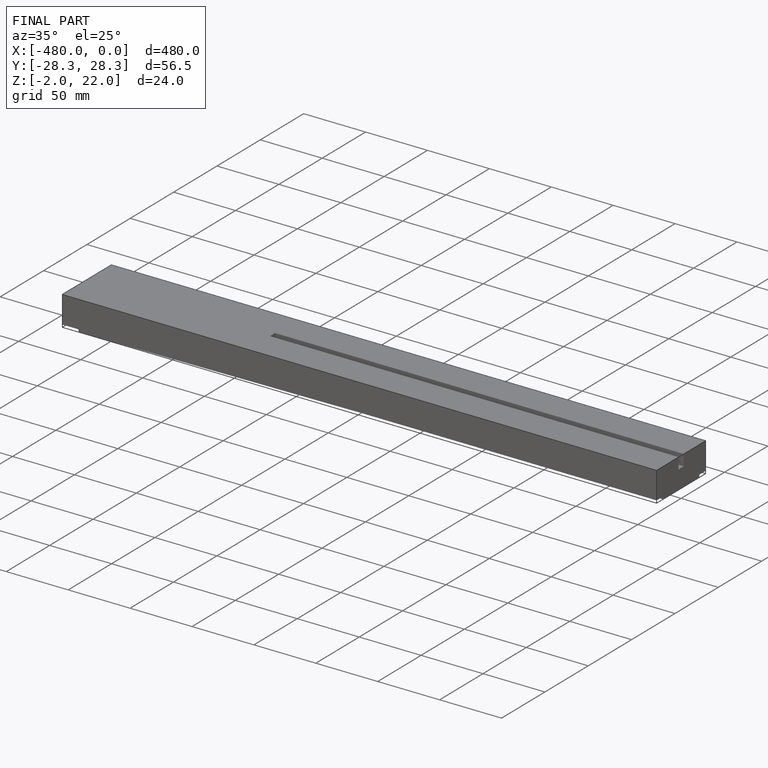
[diagram: finished part — iso view with bounding-box wireframe]
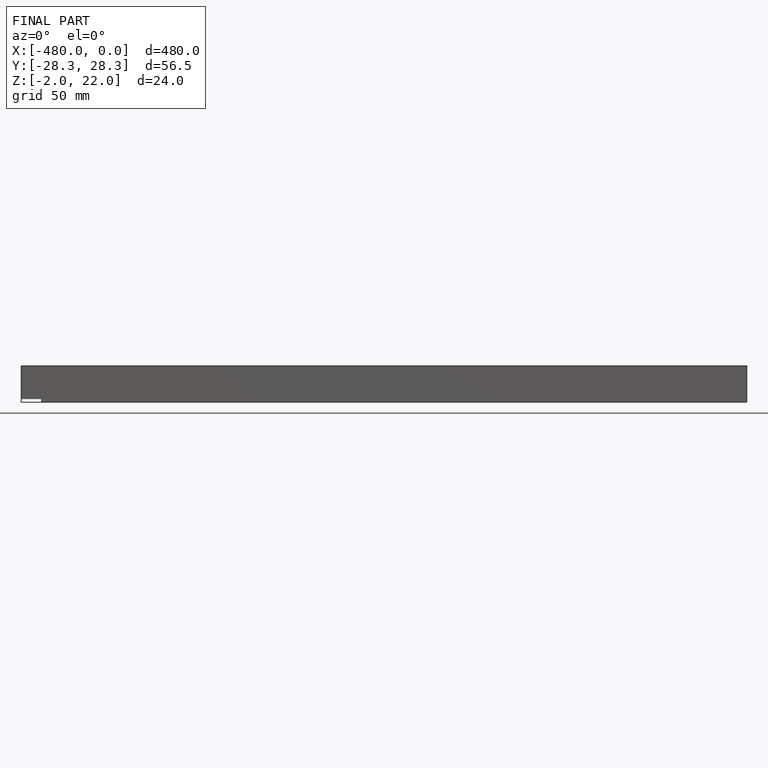
[diagram: finished part — front view with bounding-box wireframe]
